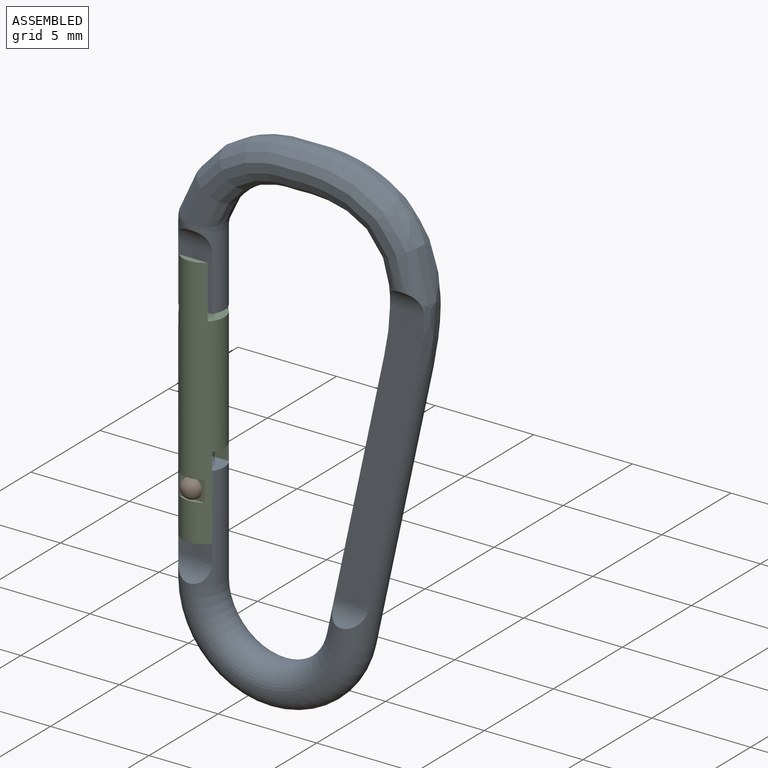
[diagram: assembled view]
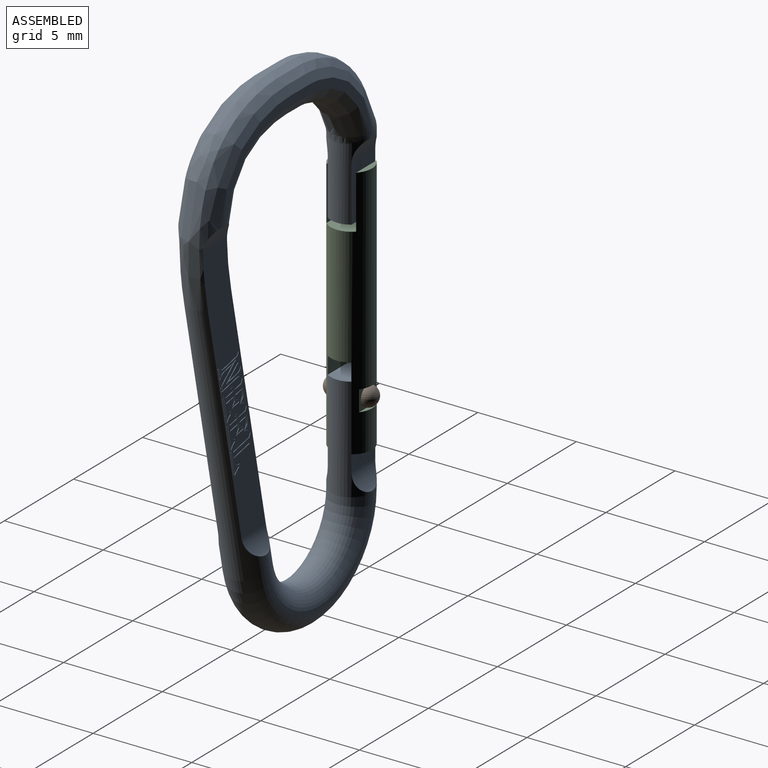
[diagram: assembled view, second angle]
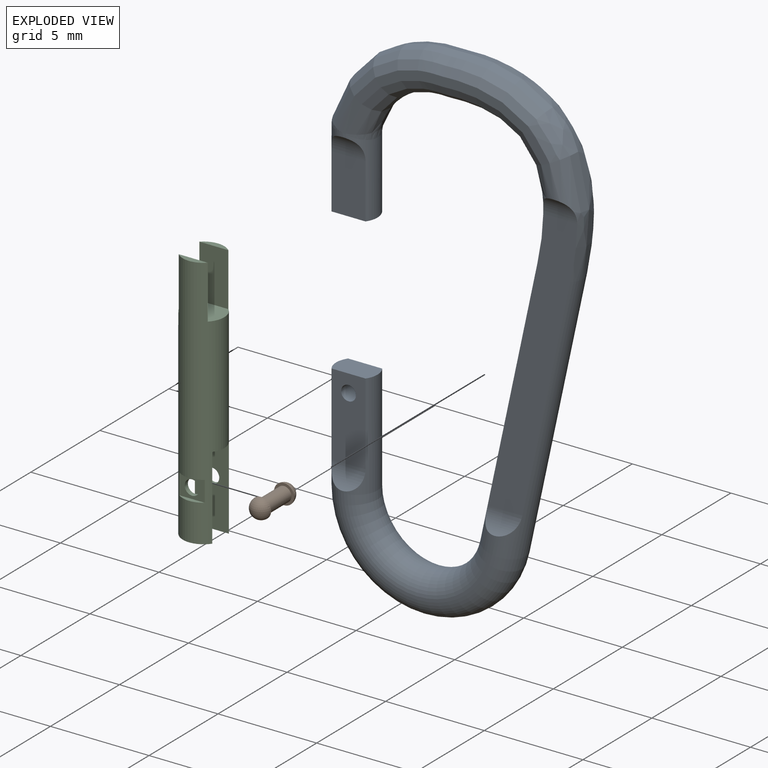
[diagram: exploded view]
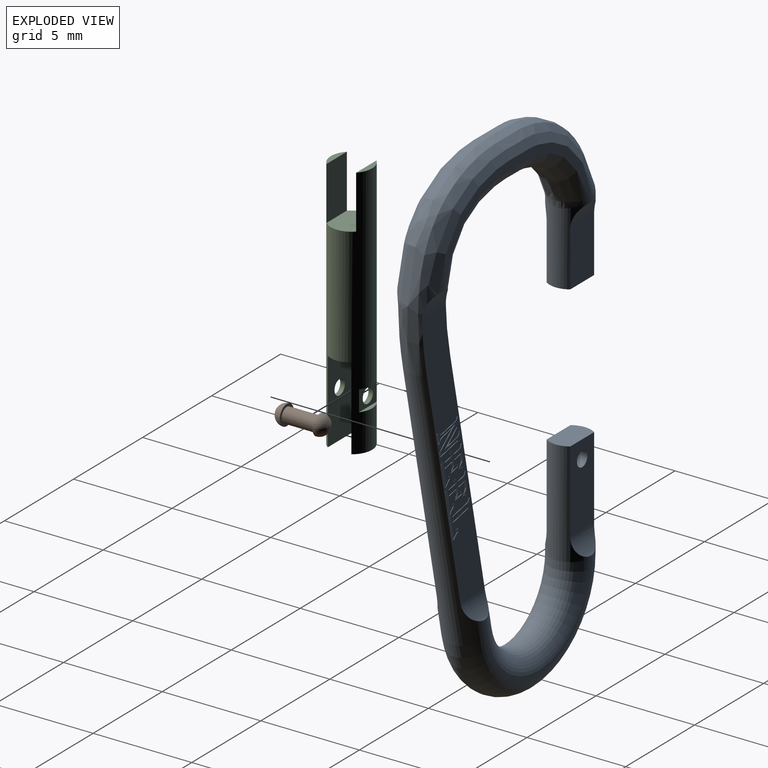
[diagram: exploded view, second angle]
ASSEMBLY  parts=3 mates=2
PART A: 240 faces, bbox 13.3x2.3x26.6 mm
  f0: torus R=3.8mm, axis (0,-1,0), area 17.1mm2, adj f1,f2,f16
  f1: torus R=3.8mm, axis (0,-1,0), area 17.1mm2, adj f0,f2,f3
  f2: cylinder r=1.05mm len=13.92mm, axis (0.21,0,0.98), area 39.8mm2, adj f0,f1,f7,f8,f9,f13,f15,f17
  f3: torus R=3.8mm, axis (0,-1,0), area 19.7mm2, adj f1,f5,f16
  f4: cylinder r=1.05mm len=4.01mm, axis (0,0,-1), area 11.4mm2, adj f11,f12,f18,f19,f20,f21,f22
  f5: cylinder r=1.05mm len=5.3mm, axis (0,0,-1), area 14.8mm2, adj f3,f16,f23,f24,f25,f26,f27
  f6: cylinder r=0.38mm len=1.2mm, axis (0,1,0), area 2.8mm2, adj f24,f26
  f7: bspline ~12.79x8.8mm, area 62.6mm2, adj f2,f8,f9,f10,f11,f12
  f8: bspline ~12.73x8.68mm, area 42.6mm2, adj f2,f7,f11,f12,f13,f14
  f9: plane 14.16x4.59mm, normal (0,-1,0), area 24.8mm2, adj f2,f7,f10,f17
  f10: cylinder r=1.45mm len=1.72mm, axis (1,0,0), area 1.6mm2, adj f7,f9
  f11: bspline ~2.1x1.15mm, area 0.5mm2, adj f4,f7,f8
  f12: sphere r=1.05mm, area 0.9mm2, adj f4,f7,f8
  f13: plane 14.16x4.59mm, normal (0,1,0), area 22.1mm2, adj f2,f8,f14,f15,f28,f29,f30,f31
  f14: cylinder r=1.45mm len=1.72mm, axis (1,0,0), area 1.6mm2, adj f8,f13
  f15: cylinder r=1.45mm len=1.81mm, axis (1,0,0), area 1.7mm2, adj f2,f13
  f16: torus R=3.8mm, axis (0,-1,0), area 19.7mm2, adj f0,f3,f5
  f17: cylinder r=1.45mm len=1.81mm, axis (1,0,0), area 1.7mm2, adj f2,f9
  f18: plane 2.1x1.2mm, normal (0,0,-1), area 2.4mm2, adj f4,f19,f21
  f19: plane 2.76x1.72mm, normal (0,-1,0), area 4.8mm2, adj f4,f18,f20
  f20: cylinder r=1.45mm len=1.72mm, axis (1,0,0), area 1.6mm2, adj f4,f19
  f21: plane 2.76x1.72mm, normal (0,1,0), area 4.8mm2, adj f4,f18,f22
  f22: cylinder r=1.45mm len=1.72mm, axis (1,0,0), area 1.6mm2, adj f4,f21
  f23: plane 2.1x1.2mm, normal (0,0,1), area 2.4mm2, adj f5,f24,f26
  f24: plane 4.16x1.72mm, normal (0,1,0), area 6.7mm2, adj f5,f6,f23,f25
  f25: cylinder r=1.45mm len=1.72mm, axis (1,0,0), area 1.6mm2, adj f5,f24
  f26: plane 4.16x1.72mm, normal (0,-1,0), area 6.7mm2, adj f5,f6,f23,f27
  f27: cylinder r=1.45mm len=1.72mm, axis (1,0,0), area 1.6mm2, adj f5,f26
  f28: plane 0.5x0.11mm, normal (-0.98,0,0.21), area 0mm2, adj f13,f29,f66,f67
  f29: extruded ~0.33x0.26mm, area 0mm2, adj f13,f28,f30,f67
  f30: plane 0.06x0.03mm, normal (0.21,0,0.98), area 0mm2, adj f13,f29,f31,f67
  f31: plane 0.51x0.11mm, normal (0.21,0,0.98), area 0mm2, adj f13,f30,f32,f67
  f32: plane 0.72x0.59mm, normal (-0.63,0,-0.77), area 0mm2, adj f13,f31,f33,f67
  f33: plane 0.12x0.12mm, normal (0.7,0,-0.72), area 0mm2, adj f13,f32,f34,f67
  f34: plane 0.03x0.03mm, normal (-0.85,0,-0.53), area 0mm2, adj f13,f33,f35,f67
  f35: plane 0.14x0.13mm, normal (-0.69,0,0.72), area 0mm2, adj f13,f34,f36,f67
  f36: plane 0.78x0.64mm, normal (0.63,0,0.77), area 0mm2, adj f13,f35,f37,f67
  f37: plane 0.13x0.03mm, normal (0.21,0,0.98), area 0mm2, adj f13,f36,f38,f67
  f38: plane 0.91x0.75mm, normal (-0.63,0,-0.77), area 0mm2, adj f13,f37,f39,f67
  f39: plane 0.14x0.13mm, normal (0.7,0,-0.71), area 0mm2, adj f13,f38,f40,f67
  f40: plane 0.54x0.12mm, normal (-0.98,0,0.21), area 0mm2, adj f13,f39,f41,f67
  f41: plane 0.17x0.09mm, normal (0.88,0,0.47), area 0mm2, adj f13,f40,f42,f67
  f42: plane 0.87x0.19mm, normal (0.21,0,0.98), area 0mm2, adj f13,f41,f43,f67
  f43: extruded ~0.45x0.16mm, area 0mm2, adj f13,f42,f44,f67
  f44: plane 0.5x0.11mm, normal (0.98,0,-0.21), area 0mm2, adj f13,f43,f45,f67
  f45: plane 0.07x0.05mm, normal (0.81,0,0.58), area 0mm2, adj f13,f44,f46,f67
  f46: plane 0.53x0.11mm, normal (-0.98,0,0.21), area 0mm2, adj f13,f45,f47,f67
  f47: plane 0.03x0.02mm, normal (0.78,0,0.62), area 0mm2, adj f13,f46,f48,f67
  f48: plane 0.58x0.12mm, normal (0.98,0,-0.21), area 0mm2, adj f13,f47,f49,f67
  f49: plane 0.12x0.08mm, normal (-0.84,0,-0.54), area 0mm2, adj f13,f48,f50,f67
  f50: extruded ~0.48x0.33mm, area 0mm2, adj f13,f49,f51,f67
  f51: plane 0.63x0.13mm, normal (-0.21,0,-0.98), area 0mm2, adj f13,f50,f52,f67
  f52: plane 0.1x0.09mm, normal (0.66,0,0.75), area 0mm2, adj f13,f51,f53,f67
  f53: plane 0.6x0.13mm, normal (0.21,0,0.98), area 0mm2, adj f13,f52,f54,f67
  f54: plane 0.1x0.03mm, normal (0.21,0,0.98), area 0mm2, adj f13,f53,f55,f67
  f55: extruded ~0.29x0.21mm, area 0mm2, adj f13,f54,f56,f67
  f56: plane 0.03x0.01mm, normal (-0.87,0,-0.49), area 0mm2, adj f13,f55,f57,f67
  f57: extruded ~0.14x0.13mm, area 0mm2, adj f13,f56,f58,f67
  f58: plane 0.16x0.05mm, normal (-0.28,0,-0.96), area 0mm2, adj f13,f57,f59,f67
  f59: plane 0.05x0.03mm, normal (-0.21,0,-0.98), area 0mm2, adj f13,f58,f60,f67
  f60: plane 0.59x0.13mm, normal (-0.21,0,-0.98), area 0mm2, adj f13,f59,f61,f67
  f61: plane 0.89x0.73mm, normal (0.63,0,0.77), area 0mm2, adj f13,f60,f62,f67
  f62: plane 0.19x0.04mm, normal (0.98,0,-0.21), area 0mm2, adj f13,f61,f63,f67
  f63: plane 0.96x0.21mm, normal (-0.21,0,-0.98), area 0mm2, adj f13,f62,f64,f67
  f64: plane 0.07x0.03mm, normal (-0.21,0,-0.98), area 0mm2, adj f13,f63,f65,f67
  f65: extruded ~0.26x0.03mm, area 0mm2, adj f13,f64,f66,f67
  f66: extruded ~0.15x0.13mm, area 0mm2, adj f13,f28,f65,f67
  f67: plane 1.75x1.32mm, normal (0,1,0), area 0.7mm2, adj f28,f29,f30,f31,f32,f33,f34,f35
  f68: extruded ~0.33x0.14mm, area 0mm2, adj f13,f69,f75,f76
  f69: plane 1.09x0.23mm, normal (0.21,0,0.98), area 0mm2, adj f13,f68,f70,f76
  f70: plane 0.22x0.05mm, normal (-0.98,0,0.21), area 0mm2, adj f13,f69,f71,f76
  f71: plane 0.03x0.02mm, normal (0.72,0,0.69), area 0mm2, adj f13,f70,f72,f76
  f72: plane 0.22x0.05mm, normal (0.98,0,-0.21), area 0mm2, adj f13,f71,f73,f76
  f73: plane 1.12x0.24mm, normal (-0.21,0,-0.98), area 0mm2, adj f13,f72,f74,f76
  f74: extruded ~0.28x0.11mm, area 0mm2, adj f13,f73,f75,f76
  f75: plane 0.04x0.03mm, normal (0.33,0,-0.94), area 0mm2, adj f13,f68,f74,f76
  f76: plane 1.48x0.28mm, normal (0,1,0), area 0mm2, adj f68,f69,f70,f71,f72,f73,f74,f75
  f77: plane 1.15x0.25mm, normal (-0.98,0,0.21), area 0mm2, adj f13,f78,f120,f121
  f78: plane 0.19x0.09mm, normal (0.9,0,0.43), area 0mm2, adj f13,f77,f79,f121
  f79: plane 0.48x0.1mm, normal (0.21,0,0.98), area 0mm2, adj f13,f78,f80,f121
  f80: extruded ~0.22x0.19mm, area 0mm2, adj f13,f79,f81,f121
  f81: extruded ~0.18x0.13mm, area 0mm2, adj f13,f80,f82,f121
  f82: plane 0.03x0.03mm, normal (0.98,0,-0.21), area 0mm2, adj f13,f81,f83,f121
  f83: plane 0.06x0.03mm, normal (0.21,0,0.98), area 0mm2, adj f13,f82,f84,f121
  f84: extruded ~0.17x0.09mm, area 0mm2, adj f13,f83,f85,f121
  f85: plane 0.03x0.02mm, normal (0.73,0,0.68), area 0mm2, adj f13,f84,f86,f121
  f86: extruded ~0.15x0.09mm, area 0mm2, adj f13,f85,f87,f121
  f87: plane 0.48x0.1mm, normal (0.21,0,0.98), area 0mm2, adj f13,f86,f88,f121
  f88: plane 0.16x0.14mm, normal (-0.64,0,0.77), area 0mm2, adj f13,f87,f89,f121
  f89: plane 1.21x0.26mm, normal (0.98,0,-0.21), area 0mm2, adj f13,f88,f90,f121
  f90: extruded ~0.31x0.28mm, area 0mm2, adj f13,f89,f91,f121
  f91: plane 0.03x0.03mm, normal (-0.31,0,0.95), area 0mm2, adj f13,f90,f92,f121
  f92: plane 0.11x0.04mm, normal (-0.33,0,0.94), area 0mm2, adj f13,f91,f93,f121
  f93: extruded ~0.44x0.25mm, area 0mm2, adj f13,f92,f94,f121
  f94: plane 0.52x0.11mm, normal (-0.21,0,-0.98), area 0mm2, adj f13,f93,f95,f121
  f95: plane 0.25x0.05mm, normal (0.98,0,-0.21), area 0mm2, adj f13,f94,f96,f121
  f96: plane 0.03x0.03mm, normal (-0.92,0,-0.39), area 0mm2, adj f13,f95,f97,f121
  f97: plane 0.24x0.05mm, normal (-0.98,0,0.21), area 0mm2, adj f13,f96,f98,f121
  f98: plane 0.54x0.12mm, normal (0.21,0,0.98), area 0mm2, adj f13,f97,f99,f121
  f99: plane 0.06x0.03mm, normal (-0.98,0,0.21), area 0mm2, adj f13,f98,f100,f121
  f100: plane 0.6x0.13mm, normal (-0.21,0,-0.98), area 0mm2, adj f13,f99,f101,f121
  f101: plane 0.29x0.06mm, normal (0.98,0,-0.21), area 0mm2, adj f13,f100,f102,f121
  f102: plane 0.19x0.15mm, normal (0.77,0,0.64), area 0mm2, adj f13,f101,f103,f121
  f103: plane 0.47x0.1mm, normal (-0.21,0,-0.98), area 0mm2, adj f13,f102,f104,f121
  f104: plane 0.24x0.1mm, normal (-0.39,0,0.92), area 0mm2, adj f13,f103,f105,f121
  f105: plane 0.21x0.04mm, normal (-0.98,0,0.21), area 0mm2, adj f13,f104,f106,f121
  f106: plane 0.43x0.09mm, normal (-0.21,0,-0.98), area 0mm2, adj f13,f105,f107,f121
  f107: plane 0.03x0.02mm, normal (0.96,0,-0.28), area 0mm2, adj f13,f106,f108,f121
  f108: extruded ~0.13x0.04mm, area 0mm2, adj f13,f107,f109,f121
  f109: extruded ~0.31x0.06mm, area 0mm2, adj f13,f108,f110,f121
  f110: plane 0.03x0.03mm, normal (0.91,0,0.42), area 0mm2, adj f13,f109,f111,f121
  f111: extruded ~0.35x0.09mm, area 0mm2, adj f13,f110,f112,f121
  f112: plane 0.16x0.04mm, normal (-0.98,0,0.21), area 0mm2, adj f13,f111,f113,f121
  f113: plane 0.46x0.1mm, normal (0.21,0,0.98), area 0mm2, adj f13,f112,f114,f121
  f114: plane 0.06x0.03mm, normal (-0.98,0,0.21), area 0mm2, adj f13,f113,f115,f121
  f115: plane 0.52x0.11mm, normal (-0.21,0,-0.98), area 0mm2, adj f13,f114,f116,f121
  f116: extruded ~0.19x0.05mm, area 0mm2, adj f13,f115,f117,f121
  f117: extruded ~0.42x0.15mm, area 0mm2, adj f13,f116,f118,f121
  f118: plane 0.03x0.03mm, normal (0.58,0,0.81), area 0mm2, adj f13,f117,f119,f121
  f119: extruded ~0.34x0.11mm, area 0mm2, adj f13,f118,f120,f121
  f120: plane 0.03x0.02mm, normal (0.46,0,-0.89), area 0mm2, adj f13,f77,f119,f121
  f121: plane 1.62x1.5mm, normal (0,1,0), area 0.7mm2, adj f77,f78,f79,f80,f81,f82,f83,f84
  f122: plane 0.03x0.02mm, normal (-0.71,0,-0.7), area 0mm2, adj f13,f123,f126,f127
  f123: extruded ~0.35x0.12mm, area 0mm2, adj f13,f122,f124,f127
  f124: plane 0.03x0.02mm, normal (0.77,0,0.64), area 0mm2, adj f13,f123,f125,f127
  f125: extruded ~0.34x0.11mm, area 0mm2, adj f13,f124,f126,f127
  f126: plane 0.03x0.01mm, normal (0.44,0,-0.9), area 0mm2, adj f13,f122,f125,f127
  f127: plane 0.37x0.14mm, normal (0,1,0), area 0mm2, adj f122,f123,f124,f125,f126
  f128: plane 0.03x0.02mm, normal (-0.93,0,-0.37), area 0mm2, adj f13,f129,f131,f132
  f129: plane 0.48x0.1mm, normal (0.21,0,0.98), area 0mm2, adj f13,f128,f130,f132
  f130: plane 0.03x0.02mm, normal (0.92,0,0.38), area 0mm2, adj f13,f129,f131,f132
  f131: plane 0.48x0.1mm, normal (-0.21,0,-0.98), area 0mm2, adj f13,f128,f130,f132
  f132: plane 0.49x0.13mm, normal (0,1,0), area 0mm2, adj f128,f129,f130,f131
  f133: plane 0.03x0.02mm, normal (-0.83,0,-0.55), area 0mm2, adj f13,f134,f141,f142
  f134: extruded ~0.26x0.24mm, area 0mm2, adj f13,f133,f135,f142
  f135: plane 0.04x0.03mm, normal (-0.99,0,-0.15), area 0mm2, adj f13,f134,f136,f142
  f136: extruded ~0.29x0.26mm, area 0mm2, adj f13,f135,f137,f142
  f137: plane 0.08x0.03mm, normal (-0.27,0,0.96), area 0mm2, adj f13,f136,f138,f142
  f138: plane 1.18x0.25mm, normal (-0.98,0,0.21), area 0mm2, adj f13,f137,f139,f142
  f139: plane 0.03x0.02mm, normal (0.78,0,0.62), area 0mm2, adj f13,f138,f140,f142
  f140: plane 1.18x0.25mm, normal (0.98,0,-0.21), area 0mm2, adj f13,f139,f141,f142
  f141: plane 0.1x0.04mm, normal (0.34,0,-0.94), area 0mm2, adj f13,f133,f140,f142
  f142: plane 1.24x0.61mm, normal (0,1,0), area 0mm2, adj f133,f134,f135,f136,f137,f138,f139,f140
  f143: plane 1.15x0.25mm, normal (-0.98,0,0.21), area 0mm2, adj f13,f144,f186,f187
  f144: plane 0.19x0.09mm, normal (0.9,0,0.43), area 0mm2, adj f13,f143,f145,f187
  f145: plane 0.48x0.1mm, normal (0.21,0,0.98), area 0mm2, adj f13,f144,f146,f187
  f146: extruded ~0.22x0.19mm, area 0mm2, adj f13,f145,f147,f187
  f147: extruded ~0.18x0.13mm, area 0mm2, adj f13,f146,f148,f187
  f148: plane 0.03x0.03mm, normal (0.98,0,-0.21), area 0mm2, adj f13,f147,f149,f187
  f149: plane 0.06x0.03mm, normal (0.21,0,0.98), area 0mm2, adj f13,f148,f150,f187
  f150: extruded ~0.17x0.09mm, area 0mm2, adj f13,f149,f151,f187
  f151: plane 0.03x0.02mm, normal (0.73,0,0.68), area 0mm2, adj f13,f150,f152,f187
  f152: extruded ~0.15x0.09mm, area 0mm2, adj f13,f151,f153,f187
  f153: plane 0.48x0.1mm, normal (0.21,0,0.98), area 0mm2, adj f13,f152,f154,f187
  f154: plane 0.16x0.14mm, normal (-0.64,0,0.77), area 0mm2, adj f13,f153,f155,f187
  f155: plane 1.21x0.26mm, normal (0.98,0,-0.21), area 0mm2, adj f13,f154,f156,f187
  f156: extruded ~0.31x0.28mm, area 0mm2, adj f13,f155,f157,f187
  f157: plane 0.03x0.03mm, normal (-0.31,0,0.95), area 0mm2, adj f13,f156,f158,f187
  f158: plane 0.11x0.04mm, normal (-0.33,0,0.94), area 0mm2, adj f13,f157,f159,f187
  f159: extruded ~0.44x0.25mm, area 0mm2, adj f13,f158,f160,f187
  f160: plane 0.52x0.11mm, normal (-0.21,0,-0.98), area 0mm2, adj f13,f159,f161,f187
  f161: plane 0.25x0.05mm, normal (0.98,0,-0.21), area 0mm2, adj f13,f160,f162,f187
  f162: plane 0.03x0.03mm, normal (-0.92,0,-0.39), area 0mm2, adj f13,f161,f163,f187
  f163: plane 0.24x0.05mm, normal (-0.98,0,0.21), area 0mm2, adj f13,f162,f164,f187
  f164: plane 0.54x0.12mm, normal (0.21,0,0.98), area 0mm2, adj f13,f163,f165,f187
  f165: plane 0.06x0.03mm, normal (-0.98,0,0.21), area 0mm2, adj f13,f164,f166,f187
  f166: plane 0.6x0.13mm, normal (-0.21,0,-0.98), area 0mm2, adj f13,f165,f167,f187
  f167: plane 0.29x0.06mm, normal (0.98,0,-0.21), area 0mm2, adj f13,f166,f168,f187
  f168: plane 0.19x0.15mm, normal (0.77,0,0.64), area 0mm2, adj f13,f167,f169,f187
  f169: plane 0.47x0.1mm, normal (-0.21,0,-0.98), area 0mm2, adj f13,f168,f170,f187
  f170: plane 0.24x0.1mm, normal (-0.39,0,0.92), area 0mm2, adj f13,f169,f171,f187
  f171: plane 0.21x0.04mm, normal (-0.98,0,0.21), area 0mm2, adj f13,f170,f172,f187
  f172: plane 0.43x0.09mm, normal (-0.21,0,-0.98), area 0mm2, adj f13,f171,f173,f187
  f173: plane 0.03x0.02mm, normal (0.96,0,-0.28), area 0mm2, adj f13,f172,f174,f187
  f174: extruded ~0.13x0.04mm, area 0mm2, adj f13,f173,f175,f187
  f175: extruded ~0.31x0.06mm, area 0mm2, adj f13,f174,f176,f187
  f176: plane 0.03x0.03mm, normal (0.91,0,0.42), area 0mm2, adj f13,f175,f177,f187
  f177: extruded ~0.35x0.09mm, area 0mm2, adj f13,f176,f178,f187
  f178: plane 0.16x0.04mm, normal (-0.98,0,0.21), area 0mm2, adj f13,f177,f179,f187
  f179: plane 0.46x0.1mm, normal (0.21,0,0.98), area 0mm2, adj f13,f178,f180,f187
  f180: plane 0.06x0.03mm, normal (-0.98,0,0.21), area 0mm2, adj f13,f179,f181,f187
  f181: plane 0.52x0.11mm, normal (-0.21,0,-0.98), area 0mm2, adj f13,f180,f182,f187
  f182: extruded ~0.19x0.05mm, area 0mm2, adj f13,f181,f183,f187
  f183: extruded ~0.42x0.15mm, area 0mm2, adj f13,f182,f184,f187
  f184: plane 0.03x0.03mm, normal (0.58,0,0.81), area 0mm2, adj f13,f183,f185,f187
  f185: extruded ~0.34x0.11mm, area 0mm2, adj f13,f184,f186,f187
  f186: plane 0.03x0.02mm, normal (0.46,0,-0.89), area 0mm2, adj f13,f143,f185,f187
  f187: plane 1.62x1.5mm, normal (0,1,0), area 0.7mm2, adj f143,f144,f145,f146,f147,f148,f149,f150
  f188: plane 0.03x0.02mm, normal (-0.71,0,-0.7), area 0mm2, adj f13,f189,f192,f193
  f189: extruded ~0.35x0.12mm, area 0mm2, adj f13,f188,f190,f193
  f190: plane 0.03x0.02mm, normal (0.77,0,0.64), area 0mm2, adj f13,f189,f191,f193
  f191: extruded ~0.34x0.11mm, area 0mm2, adj f13,f190,f192,f193
  f192: plane 0.03x0.01mm, normal (0.44,0,-0.9), area 0mm2, adj f13,f188,f191,f193
  f193: plane 0.37x0.14mm, normal (0,1,0), area 0mm2, adj f188,f189,f190,f191,f192
  f194: plane 0.03x0.02mm, normal (-0.93,0,-0.37), area 0mm2, adj f13,f195,f197,f198
  f195: plane 0.48x0.1mm, normal (0.21,0,0.98), area 0mm2, adj f13,f194,f196,f198
  f196: plane 0.03x0.02mm, normal (0.92,0,0.38), area 0mm2, adj f13,f195,f197,f198
  f197: plane 0.48x0.1mm, normal (-0.21,0,-0.98), area 0mm2, adj f13,f194,f196,f198
  f198: plane 0.49x0.13mm, normal (0,1,0), area 0mm2, adj f194,f195,f196,f197
  f199: plane 0.03x0.02mm, normal (-0.83,0,-0.55), area 0mm2, adj f13,f200,f207,f208
  f200: extruded ~0.26x0.24mm, area 0mm2, adj f13,f199,f201,f208
  f201: plane 0.04x0.03mm, normal (-0.99,0,-0.15), area 0mm2, adj f13,f200,f202,f208
  f202: extruded ~0.29x0.26mm, area 0mm2, adj f13,f201,f203,f208
  f203: plane 0.08x0.03mm, normal (-0.27,0,0.96), area 0mm2, adj f13,f202,f204,f208
  f204: plane 1.18x0.25mm, normal (-0.98,0,0.21), area 0mm2, adj f13,f203,f205,f208
  f205: plane 0.03x0.02mm, normal (0.78,0,0.62), area 0mm2, adj f13,f204,f206,f208
  f206: plane 1.18x0.25mm, normal (0.98,0,-0.21), area 0mm2, adj f13,f205,f207,f208
  f207: plane 0.1x0.04mm, normal (0.34,0,-0.94), area 0mm2, adj f13,f199,f206,f208
  f208: plane 1.24x0.61mm, normal (0,1,0), area 0mm2, adj f199,f200,f201,f202,f203,f204,f205,f206
  f209: plane 0.18x0.11mm, normal (0.86,0,0.51), area 0mm2, adj f13,f210,f226,f227
  f210: plane 1.13x0.24mm, normal (0.21,0,0.98), area 0mm2, adj f13,f209,f211,f227
  f211: plane 0.16x0.12mm, normal (-0.6,0,0.8), area 0mm2, adj f13,f210,f212,f227
  f212: plane 1.12x0.24mm, normal (0.98,0,-0.21), area 0mm2, adj f13,f211,f213,f227
  f213: extruded ~0.37x0.3mm, area 0mm2, adj f13,f212,f214,f227
  f214: extruded ~0.41x0.31mm, area 0mm2, adj f13,f213,f215,f227
  f215: extruded ~0.09x0.03mm, area 0mm2, adj f13,f214,f216,f227
  f216: plane 1.14x0.24mm, normal (-0.21,0,-0.98), area 0mm2, adj f13,f215,f217,f227
  f217: plane 0.13x0.08mm, normal (0.53,0,-0.85), area 0mm2, adj f13,f216,f218,f227
  f218: plane 0.03x0.02mm, normal (-0.7,0,-0.71), area 0mm2, adj f13,f217,f219,f227
  f219: plane 0.14x0.09mm, normal (-0.52,0,0.86), area 0mm2, adj f13,f218,f220,f227
  f220: plane 1.15x0.25mm, normal (0.21,0,0.98), area 0mm2, adj f13,f219,f221,f227
  f221: plane 0.03x0.01mm, normal (-0.83,0,0.55), area 0mm2, adj f13,f220,f222,f227
  f222: plane 0.04x0.03mm, normal (-1,0,0.04), area 0mm2, adj f13,f221,f223,f227
  f223: plane 0.03x0.01mm, normal (-0.98,0,0.2), area 0mm2, adj f13,f222,f224,f227
  f224: plane 1.16x0.25mm, normal (-0.21,0,-0.98), area 0mm2, adj f13,f223,f225,f227
  f225: plane 0.18x0.12mm, normal (0.55,0,-0.83), area 0mm2, adj f13,f224,f226,f227
  f226: plane 0.51x0.11mm, normal (-0.98,0,0.21), area 0mm2, adj f13,f209,f225,f227
  f227: plane 1.5x1.42mm, normal (0,1,0), area 0.5mm2, adj f209,f210,f211,f212,f213,f214,f215,f216
  f228: plane 0.03x0.01mm, normal (-0.77,0,-0.64), area 0mm2, adj f13,f229,f238,f239
  f229: extruded ~0.26x0.24mm, area 0mm2, adj f13,f228,f230,f239
  f230: plane 0.03x0.02mm, normal (-0.56,0,-0.83), area 0mm2, adj f13,f229,f231,f239
  f231: plane 0.04x0.03mm, normal (-0.99,0,-0.15), area 0mm2, adj f13,f230,f232,f239
  f232: plane 0.03x0.01mm, normal (0.53,0,0.85), area 0mm2, adj f13,f231,f233,f239
  f233: extruded ~0.29x0.26mm, area 0mm2, adj f13,f232,f234,f239
  f234: plane 0.08x0.03mm, normal (-0.21,0,0.98), area 0mm2, adj f13,f233,f235,f239
  f235: plane 1.14x0.24mm, normal (-0.98,0,0.21), area 0mm2, adj f13,f234,f236,f239
  f236: plane 0.03x0.03mm, normal (0.9,0,0.43), area 0mm2, adj f13,f235,f237,f239
  f237: plane 1.13x0.24mm, normal (0.98,0,-0.21), area 0mm2, adj f13,f236,f238,f239
  f238: plane 0.1x0.03mm, normal (0.28,0,-0.96), area 0mm2, adj f13,f228,f237,f239
  f239: plane 1.19x0.64mm, normal (0,1,0), area 0mm2, adj f228,f229,f230,f231,f232,f233,f234,f235
PART B: 5 faces, bbox 1x2.7x1 mm
  f0: cylinder r=0.38mm len=1.66mm, axis (0,1,0), area 3.9mm2, adj f1,f2
  f1: plane 1.02x1.02mm, normal (0,1,0), area 0.4mm2, adj f0,f3
  f2: plane 1.02x1.02mm, normal (0,-1,0), area 0.4mm2, adj f0,f4
  f3: sphere r=0.51mm, area 1.6mm2, adj f1
  f4: sphere r=0.51mm, area 1.6mm2, adj f2
PART C: 19 faces, bbox 2.1x2.1x12.9 mm
  f0: cylinder r=1.05mm len=12.9mm, axis (0,0,1), area 62.5mm2, adj f3,f4,f5,f6,f7,f8,f9,f10
  f1: cylinder r=0.38mm len=0.75mm, axis (0,1,0), area 0.5mm2, adj f3,f13
  f2: cylinder r=0.38mm len=0.75mm, axis (0,1,0), area 0.5mm2, adj f6,f15
  f3: plane 1.28x1.05mm, normal (0,1,0), area 0.9mm2, adj f0,f1,f4,f5
  f4: plane 1.28x0.22mm, normal (0,0,-1), area 0.2mm2, adj f0,f3
  f5: plane 1.28x0.22mm, normal (0,0,1), area 0.2mm2, adj f0,f3
  f6: plane 1.28x1.05mm, normal (0,-1,0), area 0.9mm2, adj f0,f2,f7,f8
  f7: plane 1.28x0.22mm, normal (0,0,-1), area 0.2mm2, adj f0,f6
  f8: plane 1.28x0.22mm, normal (0,0,1), area 0.2mm2, adj f0,f6
  f9: plane 2.1x1.5mm, normal (0,0,1), area 2.9mm2, adj f0,f10,f17
  f10: plane 2.7x1.47mm, normal (0,-1,0), area 4mm2, adj f0,f9,f11
  f11: plane 1.47x0.3mm, normal (0,0,1), area 0.3mm2, adj f0,f10
  f12: plane 2.1x1.2mm, normal (0,0,-1), area 2.4mm2, adj f0,f13,f15
  f13: plane 4.2x1.72mm, normal (0,-1,0), area 6.8mm2, adj f0,f1,f12,f14
  f14: plane 1.72x0.45mm, normal (0,0,-1), area 0.5mm2, adj f0,f13
  f15: plane 4.2x1.72mm, normal (0,1,0), area 6.8mm2, adj f0,f2,f12,f16
  f16: plane 1.72x0.45mm, normal (0,0,-1), area 0.5mm2, adj f0,f15
  f17: plane 2.7x1.47mm, normal (0,1,0), area 4mm2, adj f0,f9,f18
  f18: plane 1.47x0.3mm, normal (0,0,1), area 0.3mm2, adj f0,f17
PLACE A at identity
PLACE B t=(2.49,0,8.21)mm
PLACE C t=(2.49,0,5.78)mm
MATE revolute C.f1 <-> A.f6  axis (0,-1,0) through (8.29,2,29.46)mm
MATE revolute B.f0 <-> C.f1  axis (0,-1,0) through (8.29,2.23,29.46)mm
